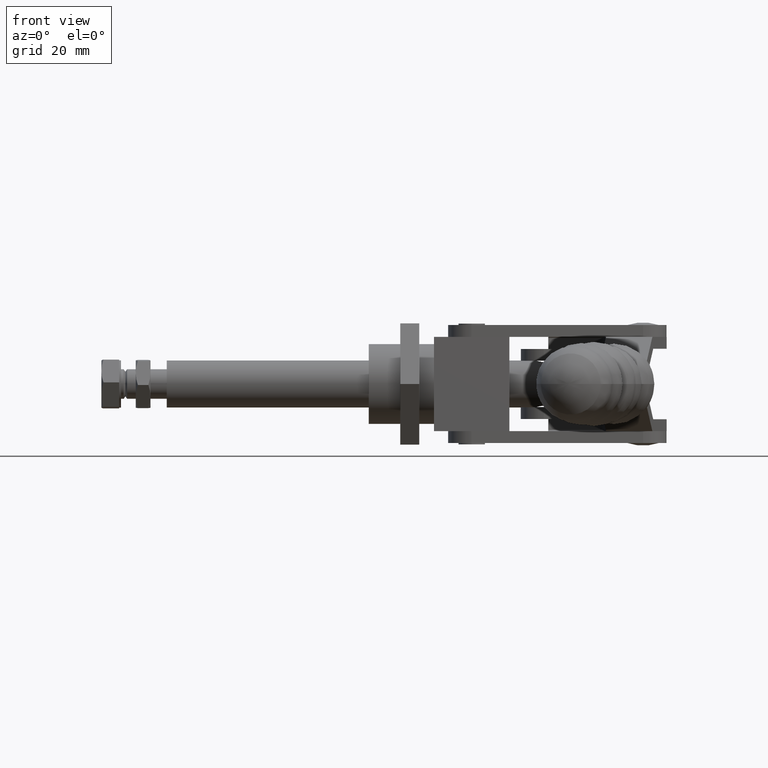
[diagram: clean part render]
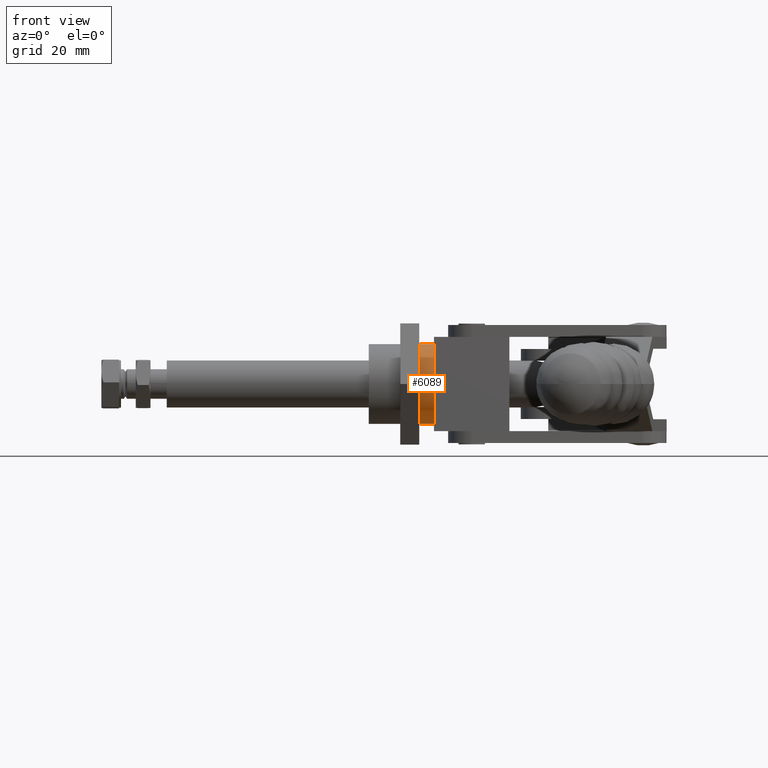
[diagram: same view with one face highlighted and labeled with its STEP entity id]
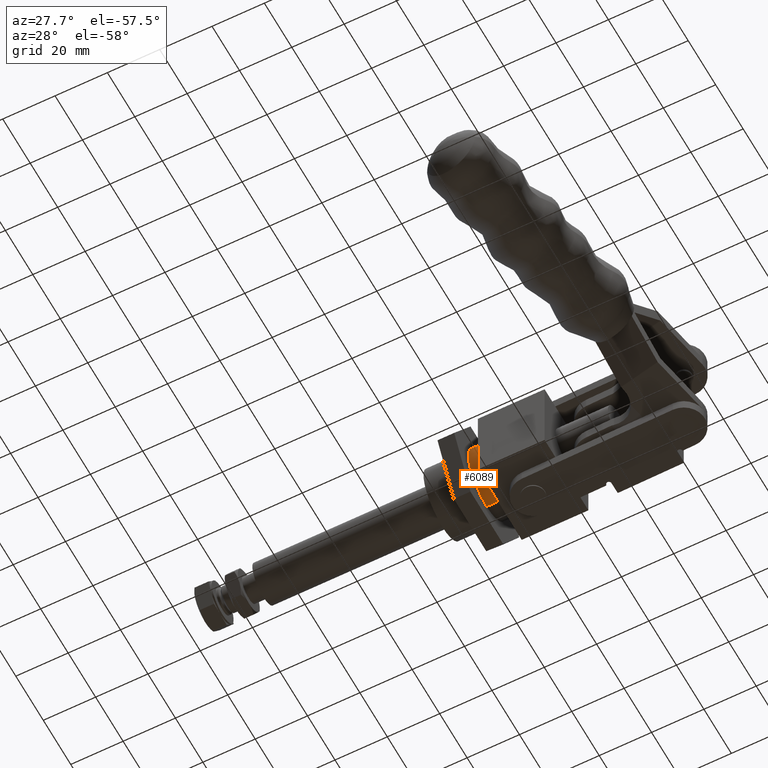
[diagram: same view with one face highlighted and labeled with its STEP entity id]
A machine part, front view. The second image highlights one B-rep face of the part: STEP entity #6089.
A second angle (auxiliary view) of the same face is appended — the face is thin or edge-on in the first view.
In plain terms, the highlighted cylindrical surface (partial cylindrical patch) has radius 13.5 mm, axis along (1, 0, 0).
Its self-contained STEP definition (entity closure, byte-faithful):
#494 = ORIENTED_EDGE ( 'NONE', *, *, #962, .T. ) ;
#789 = EDGE_LOOP ( 'NONE', ( #4408, #8828, #8505, #494 ) ) ;
#891 = EDGE_CURVE ( 'NONE', #9294, #3875, #1112, .T. ) ;
#962 = EDGE_CURVE ( 'NONE', #6657, #3875, #9049, .T. ) ;
#1112 = LINE ( 'NONE', #7283, #3120 ) ;
#1790 = CARTESIAN_POINT ( 'NONE',  ( -25.50000000002228300, 1.653273178848926900E-015, 13.50000000000000000 ) ) ;
#1833 = CARTESIAN_POINT ( 'NONE',  ( -47.60000000000000100, 0.0000000000000000000, 0.0000000000000000000 ) ) ;
#1982 = DIRECTION ( 'NONE',  ( 1.000000000000000000, -0.0000000000000000000, -0.0000000000000000000 ) ) ;
#2479 = DIRECTION ( 'NONE',  ( 0.0000000000000000000, 0.0000000000000000000, -1.000000000000000000 ) ) ;
#2669 = DIRECTION ( 'NONE',  ( 0.0000000000000000000, 0.0000000000000000000, -1.000000000000000000 ) ) ;
#2745 = EDGE_CURVE ( 'NONE', #9253, #6657, #4403, .T. ) ;
#2831 = DIRECTION ( 'NONE',  ( 1.000000000000000000, -0.0000000000000000000, -0.0000000000000000000 ) ) ;
#3120 = VECTOR ( 'NONE', #1982, 1000.000000000000000 ) ;
#3875 = VERTEX_POINT ( 'NONE', #1790 ) ;
#4403 = LINE ( 'NONE', #5731, #8187 ) ;
#4408 = ORIENTED_EDGE ( 'NONE', *, *, #891, .F. ) ;
#5408 = EDGE_CURVE ( 'NONE', #9294, #9253, #8312, .T. ) ;
#5620 = AXIS2_PLACEMENT_3D ( 'NONE', #8747, #9509, #2669 ) ;
#5698 = DIRECTION ( 'NONE',  ( 1.000000000000000000, -0.0000000000000000000, -0.0000000000000000000 ) ) ;
#5731 = CARTESIAN_POINT ( 'NONE',  ( -47.60000000000000100, 0.0000000000000000000, -13.50000000000000000 ) ) ;
#6089 = ADVANCED_FACE ( 'NONE', ( #8349 ), #7393, .T. ) ;
#6333 = DIRECTION ( 'NONE',  ( 1.000000000000000000, -0.0000000000000000000, -0.0000000000000000000 ) ) ;
#6379 = CARTESIAN_POINT ( 'NONE',  ( -25.50000000002228300, 0.0000000000000000000, -13.50000000000000000 ) ) ;
#6657 = VERTEX_POINT ( 'NONE', #6379 ) ;
#6934 = CARTESIAN_POINT ( 'NONE',  ( -30.49999999999998600, 0.0000000000000000000, -13.50000000000000000 ) ) ;
#7257 = AXIS2_PLACEMENT_3D ( 'NONE', #7372, #2831, #8137 ) ;
#7283 = CARTESIAN_POINT ( 'NONE',  ( -47.60000000000000100, 1.653273178848926900E-015, 13.50000000000000000 ) ) ;
#7372 = CARTESIAN_POINT ( 'NONE',  ( -30.49999999999998600, 0.0000000000000000000, 0.0000000000000000000 ) ) ;
#7393 = CYLINDRICAL_SURFACE ( 'NONE', #7821, 13.50000000000000000 ) ;
#7749 = CARTESIAN_POINT ( 'NONE',  ( -30.49999999999998600, 1.653273178848926900E-015, 13.50000000000000000 ) ) ;
#7821 = AXIS2_PLACEMENT_3D ( 'NONE', #1833, #6333, #2479 ) ;
#8137 = DIRECTION ( 'NONE',  ( 0.0000000000000000000, 0.0000000000000000000, -1.000000000000000000 ) ) ;
#8187 = VECTOR ( 'NONE', #5698, 1000.000000000000000 ) ;
#8312 = CIRCLE ( 'NONE', #7257, 13.50000000000000000 ) ;
#8349 = FACE_OUTER_BOUND ( 'NONE', #789, .T. ) ;
#8505 = ORIENTED_EDGE ( 'NONE', *, *, #2745, .T. ) ;
#8747 = CARTESIAN_POINT ( 'NONE',  ( -25.50000000002228300, 0.0000000000000000000, 0.0000000000000000000 ) ) ;
#8828 = ORIENTED_EDGE ( 'NONE', *, *, #5408, .T. ) ;
#9049 = CIRCLE ( 'NONE', #5620, 13.50000000000000000 ) ;
#9253 = VERTEX_POINT ( 'NONE', #6934 ) ;
#9294 = VERTEX_POINT ( 'NONE', #7749 ) ;
#9509 = DIRECTION ( 'NONE',  ( -1.000000000000000000, 0.0000000000000000000, 0.0000000000000000000 ) ) ;